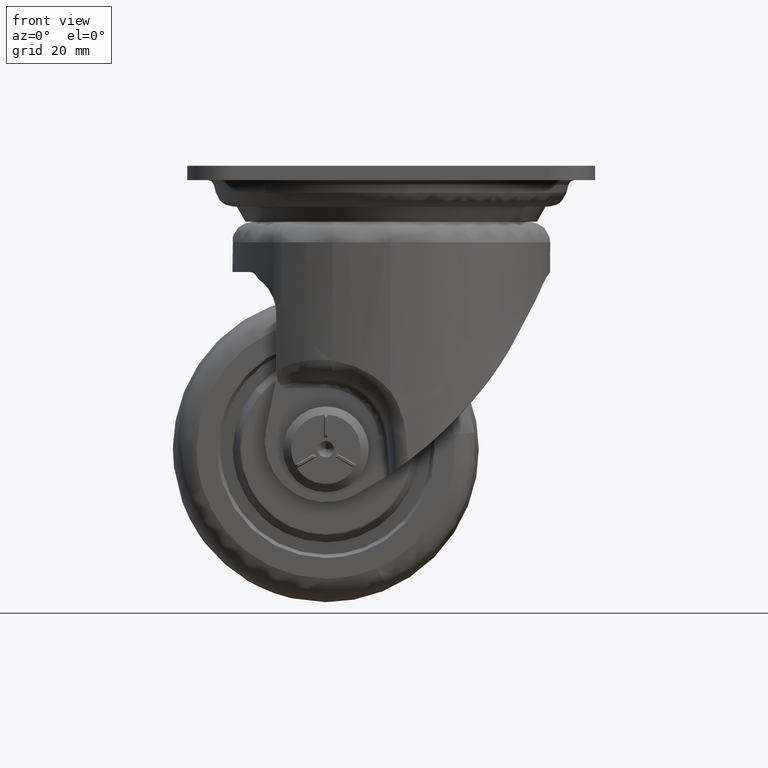
[diagram: clean part render]
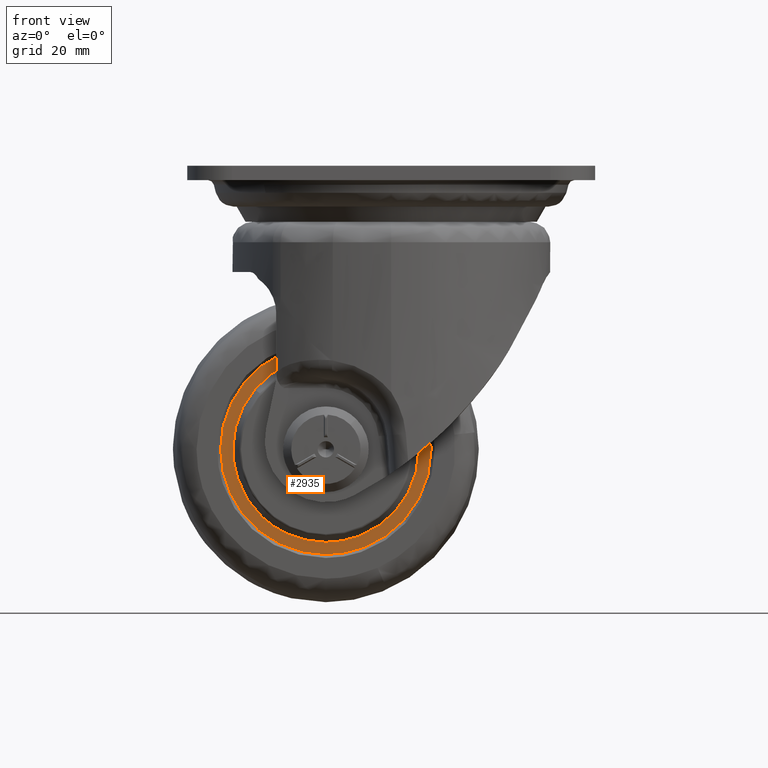
[diagram: same view with one face highlighted and labeled with its STEP entity id]
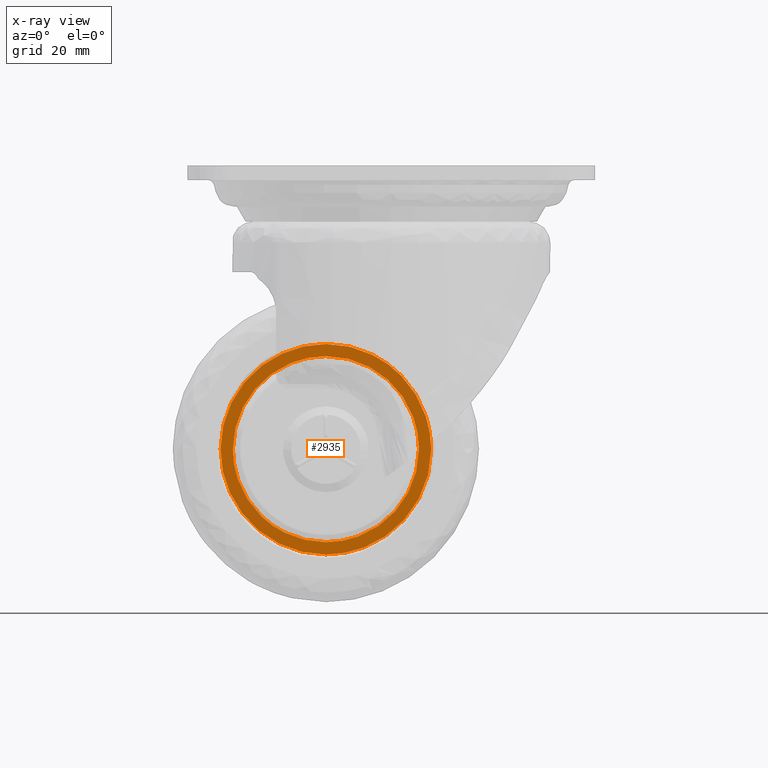
[diagram: x-ray of the same camera — body ghosted, the highlighted face saturated]
A machine part, front view. The second image highlights one B-rep face of the part: STEP entity #2935.
The next image is the same camera in x-ray: the body ghosted, the highlighted face saturated — about 0% of this face is hidden behind the body in this view.
In plain terms, the highlighted face is a freeform B-spline surface patch.
Its self-contained STEP definition (entity closure, byte-faithful):
#346=CARTESIAN_POINT('',(3.028686504289267,-20.500000222407920,-84.936578644484882));
#347=VERTEX_POINT('',#346);
#353=CARTESIAN_POINT('',(-16.0,-20.500000000000000,-93.309400381185057));
#354=VERTEX_POINT('',#353);
#355=CARTESIAN_POINT('',(3.028686504289267,-20.500000222407920,-84.936578644484882));
#356=CARTESIAN_POINT('',(2.238171266585060,-20.500000213168349,-85.799304771961502));
#357=CARTESIAN_POINT('',(0.296956226617031,-20.500000190479390,-87.648213515961743));
#358=CARTESIAN_POINT('',(-2.692201102204986,-20.500000155541951,-89.717798699041197));
#359=CARTESIAN_POINT('',(-5.638005386826566,-20.500000121111409,-91.188510248716170));
#360=CARTESIAN_POINT('',(-8.040166816080944,-20.500000093034750,-92.091202343518162));
#361=CARTESIAN_POINT('',(-11.431007873800761,-20.500000053402658,-93.013562170248960));
#362=CARTESIAN_POINT('',(-14.105451993305049,-20.500000022143439,-93.309760190787856));
#363=CARTESIAN_POINT('',(-16.0,-20.500000000000000,-93.309400381185057));
#364=B_SPLINE_CURVE_WITH_KNOTS('',3,(#355,#356,#357,#358,#359,#360,#361,#362,#363),.UNSPECIFIED.,.F.,.U.,(4,1,1,1,1,1,4),(0.000000019529136,3.510415386001380,8.023828976807437,10.865562293757080,13.373011931497700,15.713303294438630,21.396840888765059),.UNSPECIFIED.);
#365=EDGE_CURVE('',#347,#354,#364,.T.);
#367=CARTESIAN_POINT('',(-41.809400381184929,-20.500000000000000,-67.499997509618339));
#368=VERTEX_POINT('',#367);
#369=CARTESIAN_POINT('',(-16.0,-20.500000000000000,-93.309400381185057));
#370=CARTESIAN_POINT('',(-17.425278520765911,-20.500000000000039,-93.309499633361838));
#371=CARTESIAN_POINT('',(-19.589552041246488,-20.499999999999918,-93.129654370942134));
#372=CARTESIAN_POINT('',(-22.897787314881949,-20.500000000000050,-92.429250457975840));
#373=CARTESIAN_POINT('',(-26.361530148720330,-20.500000000000071,-91.273425807637111));
#374=CARTESIAN_POINT('',(-29.636103242971839,-20.499999999999769,-89.523149589930853));
#375=CARTESIAN_POINT('',(-32.401141827209358,-20.500000000000259,-87.485277089205880));
#376=CARTESIAN_POINT('',(-34.751626977747733,-20.499999999999350,-85.355130957370704));
#377=CARTESIAN_POINT('',(-36.858292585035649,-20.500000000000259,-82.835762666434391));
#378=CARTESIAN_POINT('',(-38.659383114441013,-20.499999999999950,-79.971986908733712));
#379=CARTESIAN_POINT('',(-40.056650797950290,-20.499999999999979,-77.064120068864995));
#380=CARTESIAN_POINT('',(-41.409246531196302,-20.500000000000089,-72.884186311950856));
#381=CARTESIAN_POINT('',(-41.809918097020272,-20.499999999999950,-69.558790299471070));
#382=CARTESIAN_POINT('',(-41.809400381184929,-20.500000000000000,-67.499997509618339));
#383=B_SPLINE_CURVE_WITH_KNOTS('',3,(#369,#370,#371,#372,#373,#374,#375,#376,#377,#378,#379,#380,#381,#382),.UNSPECIFIED.,.F.,.U.,(4,1,1,1,1,1,1,1,1,1,1,4),(0.000000065295687,4.275819497766356,6.492949409276726,10.135344697974579,15.203041156466920,17.578488867121671,20.429012972090689,24.704872481162301,27.397096792880522,30.564397602431200,34.365151364202958,40.541376316717752),.UNSPECIFIED.);
#384=EDGE_CURVE('',#354,#368,#383,.T.);
#386=CARTESIAN_POINT('',(-16.0,-20.500000000000000,-41.690599618814950));
#387=VERTEX_POINT('',#386);
#388=CARTESIAN_POINT('',(-41.809400381184929,-20.500000000000000,-67.499997509618339));
#389=CARTESIAN_POINT('',(-41.809539925215176,-20.500000000000021,-65.916356997122534));
#390=CARTESIAN_POINT('',(-41.541349565359383,-20.499999999999961,-63.013056674817733));
#391=CARTESIAN_POINT('',(-40.381085491052623,-20.500000000000050,-58.664982219390318));
#392=CARTESIAN_POINT('',(-38.482692408018771,-20.500000000000039,-54.519955040817997));
#393=CARTESIAN_POINT('',(-35.967926955434237,-20.499999999999851,-50.972689449267072));
#394=CARTESIAN_POINT('',(-33.040251643096227,-20.499999999999780,-47.990688654957950));
#395=CARTESIAN_POINT('',(-30.209309258206581,-20.500000000000121,-45.850445682519030));
#396=CARTESIAN_POINT('',(-27.018260429587329,-20.499999999999929,-44.081391207158823));
#397=CARTESIAN_POINT('',(-24.214070782202370,-20.499999999999972,-42.969943960705777));
#398=CARTESIAN_POINT('',(-20.486864056812760,-20.500000000000540,-41.975306537268160));
#399=CARTESIAN_POINT('',(-17.847619467883678,-20.499999999999439,-41.690235553051153));
#400=CARTESIAN_POINT('',(-16.0,-20.500000000000000,-41.690599618814950));
#401=B_SPLINE_CURVE_WITH_KNOTS('',3,(#388,#389,#390,#391,#392,#393,#394,#395,#396,#397,#398,#399,#400),.UNSPECIFIED.,.F.,.U.,(4,1,1,1,1,1,1,1,1,1,4),(0.000000065477607,4.750915169891542,8.710054491087064,13.461004264927080,18.370349797457489,21.695932667830839,25.971812899604380,28.980744417224660,32.623147976599810,34.998625920578313,40.541373509473097),.UNSPECIFIED.);
#402=EDGE_CURVE('',#368,#387,#401,.T.);
#404=CARTESIAN_POINT('',(2.496331362092738,-20.499999776824971,-49.499698969591968));
#405=VERTEX_POINT('',#404);
#406=CARTESIAN_POINT('',(-16.0,-20.500000000000000,-41.690599618814950));
#407=CARTESIAN_POINT('',(-14.711158977759460,-20.499999984448898,-41.690521616013662));
#408=CARTESIAN_POINT('',(-12.616821590373940,-20.499999959178918,-41.847828139650183));
#409=CARTESIAN_POINT('',(-9.400606953286406,-20.499999920372311,-42.488471267931573));
#410=CARTESIAN_POINT('',(-6.685541959896773,-20.499999887612621,-43.364493720901542));
#411=CARTESIAN_POINT('',(-3.851782206738791,-20.499999853420711,-44.666555044381809));
#412=CARTESIAN_POINT('',(-0.765370713624841,-20.499999816180431,-46.529425748649068));
#413=CARTESIAN_POINT('',(1.335414817670322,-20.499999790832451,-48.306503347991580));
#414=CARTESIAN_POINT('',(2.496331362092738,-20.499999776824971,-49.499698969591968));
#415=B_SPLINE_CURVE_WITH_KNOTS('',3,(#406,#407,#408,#409,#410,#411,#412,#413,#414),.UNSPECIFIED.,.F.,.U.,(4,1,1,1,1,1,4),(0.000000018833408,3.866514441546453,6.283100509242638,9.827414411352512,12.405086470220290,15.627190197467410,20.621446067737800),.UNSPECIFIED.);
#416=EDGE_CURVE('',#387,#405,#415,.T.);
#454=CARTESIAN_POINT('',(9.809400381184927,-20.500000000000000,-67.500002490382414));
#455=VERTEX_POINT('',#454);
#456=CARTESIAN_POINT('',(2.496331362092738,-20.499999776824971,-49.499698969591968));
#457=CARTESIAN_POINT('',(3.364678930316797,-20.499999787886651,-50.391880980934850));
#458=CARTESIAN_POINT('',(4.904865619229276,-20.499999810585461,-52.222675828462663));
#459=CARTESIAN_POINT('',(7.006359822912568,-20.499999852070289,-55.568646287022837));
#460=CARTESIAN_POINT('',(8.521517800358689,-20.499999896012021,-59.112797283651823));
#461=CARTESIAN_POINT('',(9.564626201584810,-20.499999947261291,-63.246327145292561));
#462=CARTESIAN_POINT('',(9.809567341659649,-20.499999980705070,-65.943749524706973));
#463=CARTESIAN_POINT('',(9.809400381184927,-20.500000000000000,-67.500002490382414));
#464=B_SPLINE_CURVE_WITH_KNOTS('',3,(#456,#457,#458,#459,#460,#461,#462,#463),.UNSPECIFIED.,.F.,.U.,(4,1,1,1,1,4),(0.000000016999564,3.734984110338697,7.158729625567172,11.827453972041420,15.251197757862011,19.919930829977979),.UNSPECIFIED.);
#465=EDGE_CURVE('',#405,#455,#464,.T.);
#467=CARTESIAN_POINT('',(9.809400381184927,-20.500000000000000,-67.500002490382414));
#468=CARTESIAN_POINT('',(9.809648224179151,-20.500000021621499,-69.195112116828724));
#469=CARTESIAN_POINT('',(9.557951146012414,-20.500000054052219,-71.737646097642113));
#470=CARTESIAN_POINT('',(8.681668444444917,-20.500000098510579,-75.223138317479396));
#471=CARTESIAN_POINT('',(7.531598805953916,-20.500000137917048,-78.312582937917185));
#472=CARTESIAN_POINT('',(5.690579622809969,-20.500000181068771,-81.695602200078909));
#473=CARTESIAN_POINT('',(3.971842805274493,-20.500000209280699,-83.907428076363928));
#474=CARTESIAN_POINT('',(3.028686504289267,-20.500000222407920,-84.936578644484882));
#475=B_SPLINE_CURVE_WITH_KNOTS('',3,(#467,#468,#469,#470,#471,#472,#473,#474),.UNSPECIFIED.,.F.,.U.,(4,1,1,1,1,4),(0.000000015982557,5.085267421850739,7.627912926130843,10.768790702525330,14.956666891274841,19.144532683726979),.UNSPECIFIED.);
#476=EDGE_CURVE('',#455,#347,#475,.T.);
#593=CARTESIAN_POINT('',(-31.700954742688701,-20.500000190493420,-84.045354055781189));
#594=VERTEX_POINT('',#593);
#600=CARTESIAN_POINT('',(-16.0,-20.500000000000000,-90.309400381185057));
#601=VERTEX_POINT('',#600);
#602=CARTESIAN_POINT('',(-16.0,-20.500000000000000,-90.309400381185057));
#603=CARTESIAN_POINT('',(-17.307825242399741,-20.500000015867300,-90.309516412351499));
#604=CARTESIAN_POINT('',(-19.472440523992049,-20.500000042129859,-90.122670013641823));
#605=CARTESIAN_POINT('',(-22.992192673474509,-20.500000084833431,-89.304775157184650));
#606=CARTESIAN_POINT('',(-26.147839645684570,-20.500000123119818,-88.045795464621946));
#607=CARTESIAN_POINT('',(-29.239423822078091,-20.500000160628499,-86.168460745287902));
#608=CARTESIAN_POINT('',(-30.915887351834311,-20.500000180968620,-84.790414733830488));
#609=CARTESIAN_POINT('',(-31.700954742688701,-20.500000190493420,-84.045354055781189));
#610=B_SPLINE_CURVE_WITH_KNOTS('',3,(#602,#603,#604,#605,#606,#607,#608,#609),.UNSPECIFIED.,.F.,.U.,(4,1,1,1,1,4),(0.000000016939438,3.923458406529484,6.494002703958932,10.823334951224391,14.070337175156901,17.317337638228590),.UNSPECIFIED.);
#611=EDGE_CURVE('',#601,#594,#610,.T.);
#613=CARTESIAN_POINT('',(6.809400381184981,-20.500000000000000,-67.500001762114792));
#614=VERTEX_POINT('',#613);
#615=CARTESIAN_POINT('',(6.809400381184981,-20.500000000000000,-67.500001762114792));
#616=CARTESIAN_POINT('',(6.809806952937794,-20.499999999999940,-69.319477098167070));
#617=CARTESIAN_POINT('',(6.450206374339738,-20.500000000000188,-72.305018265808641));
#618=CARTESIAN_POINT('',(5.228595366832857,-20.499999999999812,-76.040699659674161));
#619=CARTESIAN_POINT('',(3.670616435056261,-20.499999999999972,-79.233104936171287));
#620=CARTESIAN_POINT('',(1.870584207830829,-20.500000000000359,-81.805725338359764));
#621=CARTESIAN_POINT('',(-0.241493214927003,-20.499999999999371,-84.051299107213154));
#622=CARTESIAN_POINT('',(-2.263747145594734,-20.500000000000981,-85.784982557445716));
#623=CARTESIAN_POINT('',(-4.762112916850492,-20.499999999998639,-87.432255069708617));
#624=CARTESIAN_POINT('',(-8.054983409720864,-20.500000000001080,-89.002253069796595));
#625=CARTESIAN_POINT('',(-11.847949264611360,-20.499999999999449,-90.064417501091839));
#626=CARTESIAN_POINT('',(-14.693749804218889,-20.500000000000210,-90.309469083750230));
#627=CARTESIAN_POINT('',(-16.0,-20.500000000000000,-90.309400381185057));
#628=B_SPLINE_CURVE_WITH_KNOTS('',3,(#615,#616,#617,#618,#619,#620,#621,#622,#623,#624,#625,#626,#627),.UNSPECIFIED.,.F.,.U.,(4,1,1,1,1,1,1,1,1,1,4),(0.000000067623439,5.458320063657439,8.957244903851741,11.756400035674281,16.095089632532250,18.334354588760771,20.993514478632520,24.072580657429690,27.291605796587451,31.910211735154689,35.828977547182731),.UNSPECIFIED.);
#629=EDGE_CURVE('',#614,#601,#628,.T.);
#631=CARTESIAN_POINT('',(-16.0,-20.500000000000000,-44.690599618814957));
#632=VERTEX_POINT('',#631);
#633=CARTESIAN_POINT('',(-16.0,-20.500000000000000,-44.690599618814957));
#634=CARTESIAN_POINT('',(-14.833689822841841,-20.499999999999979,-44.690529352437508));
#635=CARTESIAN_POINT('',(-12.920977999363609,-20.500000000000121,-44.837643401500230));
#636=CARTESIAN_POINT('',(-10.129966857412750,-20.499999999999918,-45.410638052941927));
#637=CARTESIAN_POINT('',(-7.861982999532743,-20.500000000000089,-46.144465488464562));
#638=CARTESIAN_POINT('',(-5.431690652702773,-20.500000000000050,-47.230719094967078));
#639=CARTESIAN_POINT('',(-2.613813070139541,-20.499999999999929,-48.895948161608757));
#640=CARTESIAN_POINT('',(0.213286633969751,-20.500000000000199,-51.289721620895932));
#641=CARTESIAN_POINT('',(2.694709910449347,-20.499999999999581,-54.275953970017540));
#642=CARTESIAN_POINT('',(4.643720727645027,-20.500000000000739,-57.527448019436797));
#643=CARTESIAN_POINT('',(5.948778043417208,-20.500000000000259,-60.941901221344693));
#644=CARTESIAN_POINT('',(6.664273898802033,-20.499999999999080,-64.374328766433720));
#645=CARTESIAN_POINT('',(6.809447123240660,-20.500000000001091,-66.427005590862947));
#646=CARTESIAN_POINT('',(6.809400381184981,-20.500000000000000,-67.500001762114792));
#647=B_SPLINE_CURVE_WITH_KNOTS('',3,(#633,#634,#635,#636,#637,#638,#639,#640,#641,#642,#643,#644,#645,#646),.UNSPECIFIED.,.F.,.U.,(4,1,1,1,1,1,1,1,1,1,1,4),(0.000000067601604,3.498921601418651,5.738221003094555,8.537374334760216,10.636738956038521,13.715809587713670,18.334355603744338,21.693298299490539,25.332207864933821,29.670878940004719,32.609993614640018,35.828979533499563),.UNSPECIFIED.);
#648=EDGE_CURVE('',#632,#614,#647,.T.);
#650=CARTESIAN_POINT('',(-33.416246787766887,-20.499999811892831,-52.771010952932123));
#651=VERTEX_POINT('',#650);
#652=CARTESIAN_POINT('',(-33.416246787766887,-20.499999811892831,-52.771010952932123));
#653=CARTESIAN_POINT('',(-32.683154670531657,-20.499999819810711,-51.904079250524141));
#654=CARTESIAN_POINT('',(-31.232217076340032,-20.499999835481841,-50.427686159232643));
#655=CARTESIAN_POINT('',(-28.737573891538531,-20.499999862425639,-48.498013479445682));
#656=CARTESIAN_POINT('',(-25.695108659860889,-20.499999895286319,-46.731393325426708));
#657=CARTESIAN_POINT('',(-21.418440180519038,-20.499999941477199,-45.139337667587697));
#658=CARTESIAN_POINT('',(-17.961091665909439,-20.499999978818909,-44.690017612567971));
#659=CARTESIAN_POINT('',(-16.0,-20.500000000000000,-44.690599618814957));
#660=B_SPLINE_CURVE_WITH_KNOTS('',3,(#652,#653,#654,#655,#656,#657,#658,#659),.UNSPECIFIED.,.F.,.U.,(4,1,1,1,1,4),(0.000000023468424,3.406017565233142,6.192778623305687,9.443994140199411,13.933740969031680,19.816882341563101),.UNSPECIFIED.);
#661=EDGE_CURVE('',#651,#632,#660,.T.);
#699=CARTESIAN_POINT('',(-38.809400381184979,-20.500000000000000,-67.499998237884810));
#700=VERTEX_POINT('',#699);
#701=CARTESIAN_POINT('',(-38.809400381184979,-20.500000000000000,-67.499998237884810));
#702=CARTESIAN_POINT('',(-38.809447908962120,-20.499999986686561,-66.457544145860481));
#703=CARTESIAN_POINT('',(-38.677668984687223,-20.499999962190088,-64.539441755182253));
#704=CARTESIAN_POINT('',(-38.144352924844661,-20.499999927649561,-61.834883993150363));
#705=CARTESIAN_POINT('',(-37.273270175443763,-20.499999892570990,-59.088197473038278));
#706=CARTESIAN_POINT('',(-35.816480691660097,-20.499999852922429,-55.983666737715581));
#707=CARTESIAN_POINT('',(-34.331871350890481,-20.499999825716699,-53.853436599633120));
#708=CARTESIAN_POINT('',(-33.416246787766887,-20.499999811892831,-52.771010952932123));
#709=B_SPLINE_CURVE_WITH_KNOTS('',3,(#701,#702,#703,#704,#705,#706,#707,#708),.UNSPECIFIED.,.F.,.U.,(4,1,1,1,1,4),(0.000000013869206,3.127357754059920,5.754356892601262,8.256226166921266,11.758882392455430,16.012096764524252),.UNSPECIFIED.);
#710=EDGE_CURVE('',#700,#651,#709,.T.);
#712=CARTESIAN_POINT('',(-31.700954742688701,-20.500000190493420,-84.045354055781189));
#713=CARTESIAN_POINT('',(-32.890071540030704,-20.500000177505449,-82.917274194433972));
#714=CARTESIAN_POINT('',(-34.552726624085743,-20.500000154944999,-80.957789858267006));
#715=CARTESIAN_POINT('',(-36.352415353465382,-20.500000120041040,-77.926192795527811));
#716=CARTESIAN_POINT('',(-37.513368263380301,-20.500000089466251,-75.270623512341857));
#717=CARTESIAN_POINT('',(-38.522299187254568,-20.500000049396569,-71.790342746484029));
#718=CARTESIAN_POINT('',(-38.809706185293749,-20.500000018871411,-69.139076670438641));
#719=CARTESIAN_POINT('',(-38.809400381184979,-20.500000000000000,-67.499998237884810));
#720=B_SPLINE_CURVE_WITH_KNOTS('',3,(#712,#713,#714,#715,#716,#717,#718,#719),.UNSPECIFIED.,.F.,.U.,(4,1,1,1,1,4),(0.000000019286531,4.917157255413841,7.664993309099739,10.557416171019090,13.594486684272640,18.511642419674391),.UNSPECIFIED.);
#721=EDGE_CURVE('',#594,#700,#720,.T.);
#2914=CARTESIAN_POINT('',(-44.387757925536953,-20.500000000000000,-95.887761617601427));
#2915=CARTESIAN_POINT('',(-44.387757925536953,-20.500000000000000,-39.112242997479022));
#2916=CARTESIAN_POINT('',(12.387760694585200,-20.500000000000000,-95.887761617601427));
#2917=CARTESIAN_POINT('',(12.387760694585200,-20.500000000000000,-39.112242997479022));
#2918=B_SPLINE_SURFACE_WITH_KNOTS('',1,1,((#2914,#2916),(#2915,#2917)),.UNSPECIFIED.,.F.,.F.,.U.,(2,2),(2,2),(0.0,56.775518620122412),(0.0,56.775518620122149),.UNSPECIFIED.);
#2919=ORIENTED_EDGE('',*,*,#402,.F.);
#2920=ORIENTED_EDGE('',*,*,#384,.F.);
#2921=ORIENTED_EDGE('',*,*,#365,.F.);
#2922=ORIENTED_EDGE('',*,*,#476,.F.);
#2923=ORIENTED_EDGE('',*,*,#465,.F.);
#2924=ORIENTED_EDGE('',*,*,#416,.F.);
#2925=EDGE_LOOP('',(#2919,#2920,#2921,#2922,#2923,#2924));
#2926=FACE_OUTER_BOUND('',#2925,.T.);
#2927=ORIENTED_EDGE('',*,*,#648,.T.);
#2928=ORIENTED_EDGE('',*,*,#629,.T.);
#2929=ORIENTED_EDGE('',*,*,#611,.T.);
#2930=ORIENTED_EDGE('',*,*,#721,.T.);
#2931=ORIENTED_EDGE('',*,*,#710,.T.);
#2932=ORIENTED_EDGE('',*,*,#661,.T.);
#2933=EDGE_LOOP('',(#2927,#2928,#2929,#2930,#2931,#2932));
#2934=FACE_BOUND('',#2933,.T.);
#2935=ADVANCED_FACE('',(#2926,#2934),#2918,.F.);